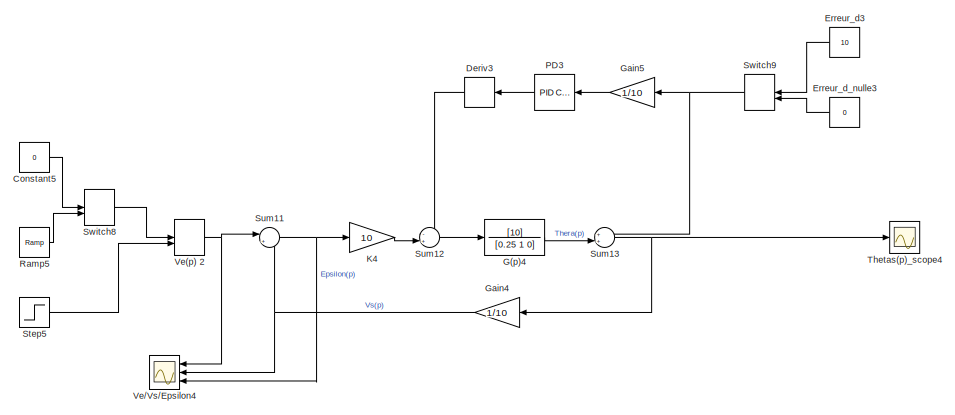
[diagram: root canvas - part 1/5, top center region]
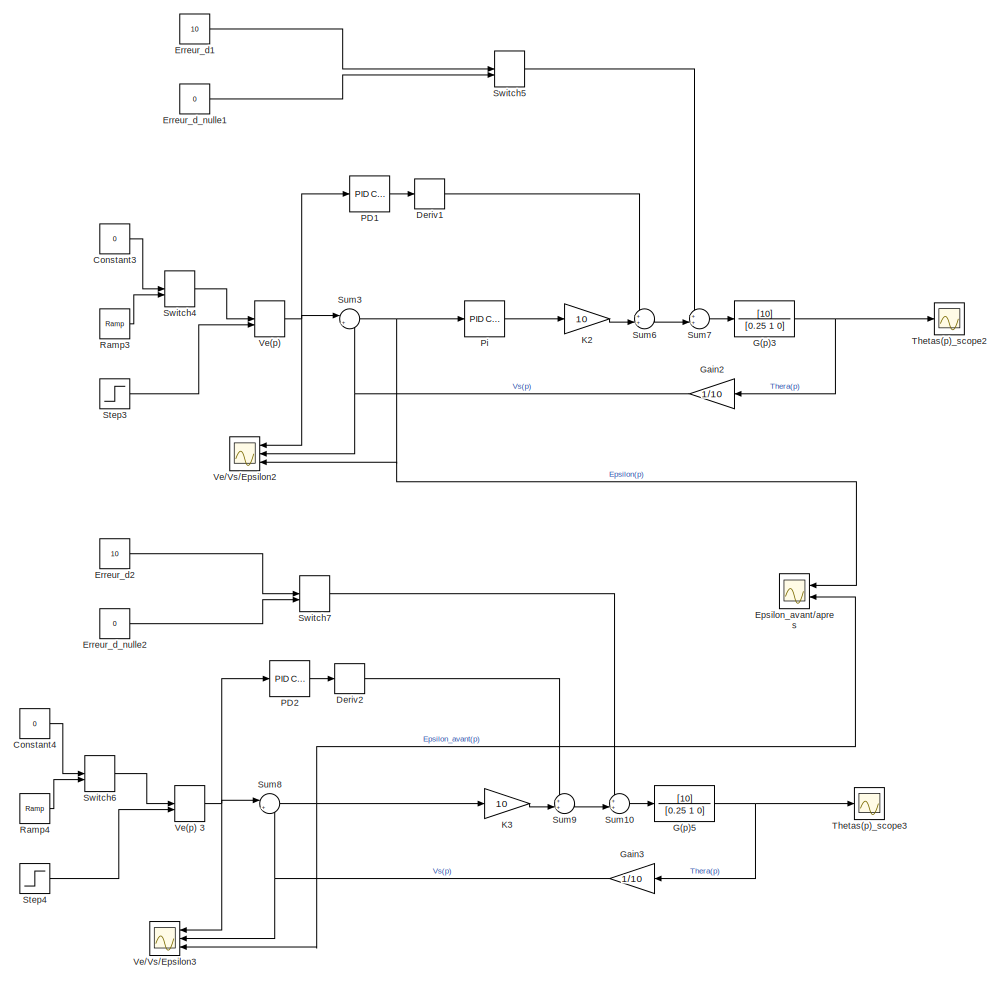
[diagram: root canvas - part 2/5, central region]
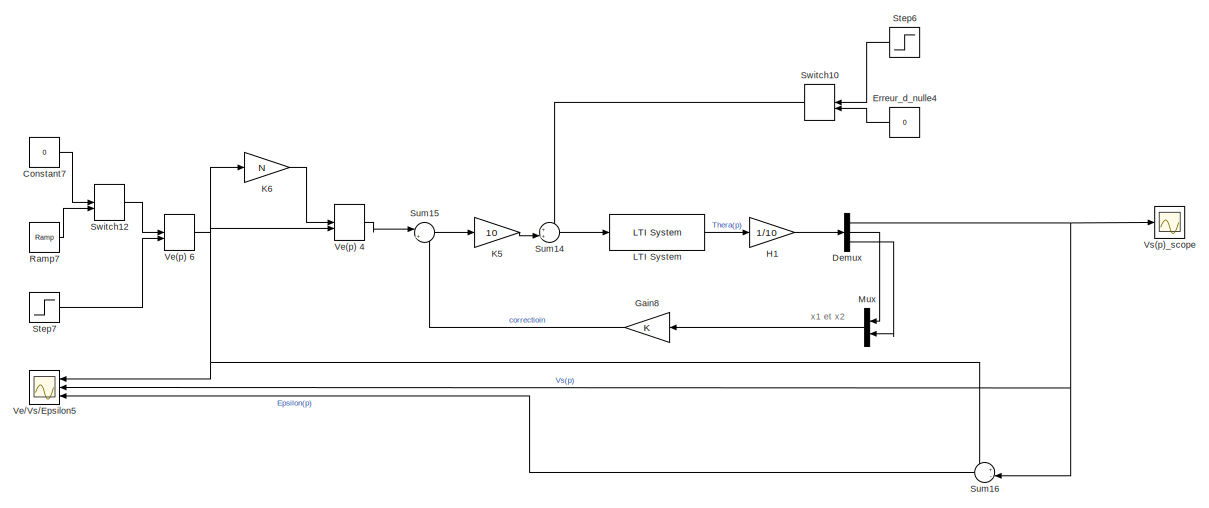
[diagram: root canvas - part 3/5, middle left region]
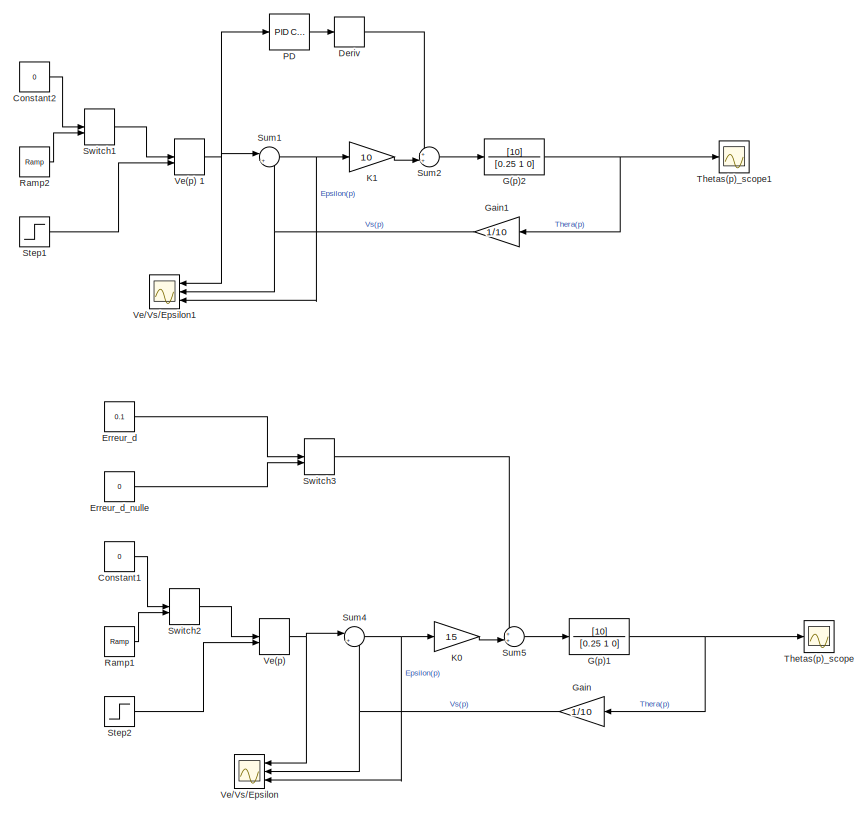
[diagram: root canvas - part 4/5, bottom right region]
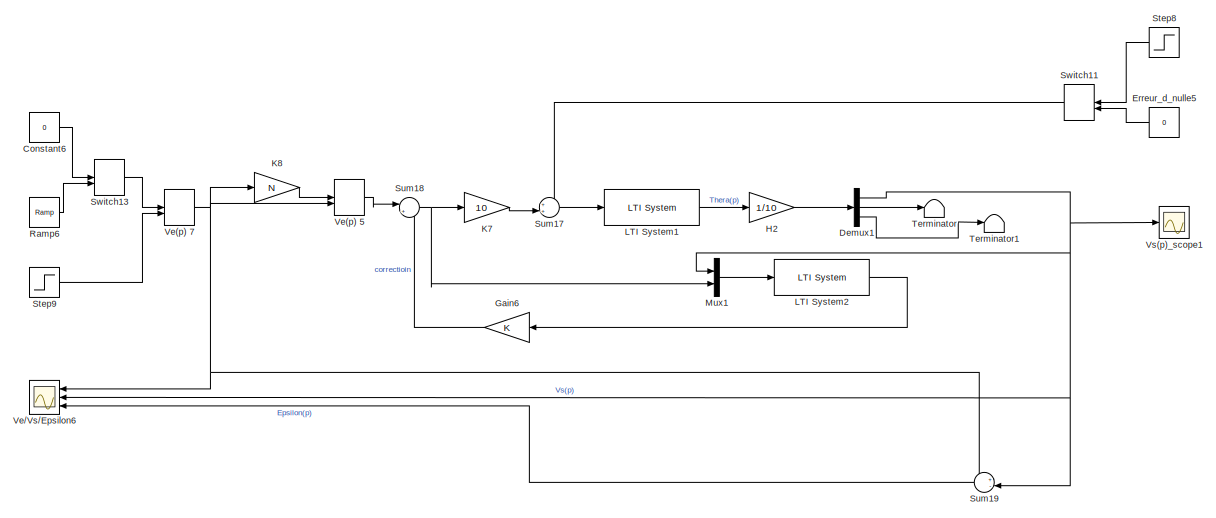
[diagram: root canvas - part 5/5, bottom left region]
MODEL slx_f2c2220bf444
KIND model
CONFIG AbsTol = auto
CONFIG FixedStep = auto
CONFIG MaxStep = auto
CONFIG MinStep = auto
CONFIG RelTol = 1e-3
CONFIG SampleTimeConstraint = Unconstrained
CONFIG Solver = VariableStepAuto
CONFIG SolverMode = Auto
CONFIG SolverName = VariableStepAuto
CONFIG StartTime = 0.0
CONFIG StopTime = 10
BLOCK [Constant] Constant1
  Value = 0
BLOCK [Constant] Constant2
  Value = 0
BLOCK [Constant] Constant3
  Value = 0
BLOCK [Constant] Constant4
  Value = 0
BLOCK [Constant] Constant5
  Value = 0
BLOCK [Constant] Constant6
  Value = 0
BLOCK [Constant] Constant7
  Value = 0
BLOCK [Demux] Demux
  DisplayOption = bar
  Outputs = 3
  Ports = [1, 3]
BLOCK [Demux] Demux1
  DisplayOption = bar
  Outputs = 3
  Ports = [1, 3]
BLOCK [Derivative] Deriv
BLOCK [Derivative] Deriv1
BLOCK [Derivative] Deriv2
BLOCK [Derivative] Deriv3
BLOCK [Scope] Epsilon_avant//apres
  NumInputPorts = 2
  Ports = [2]
  ScopeSpecificationString = Simulink.scopes.TimeScopeBlockCfg('CurrentConfiguration', extmgr.ConfigurationSet(extmgr.Configuration('Core','General UI',true),extmgr.Configuration('Core','Source UI',true),extmgr.Configuration('Sources','WiredSimulink',true,'DataLoggingVariableName','ScopeData8'),extmgr.Configuration('Visuals','Time Domain',true,'SerializedDisplays',{struct('MinYLimReal','-11.4067','MaxYLimReal','12.4067','YLab...<+2106ch>
BLOCK [Constant] Erreur_d
  Value = 0.1
BLOCK [Constant] Erreur_d1
  Value = 10
BLOCK [Constant] Erreur_d2
  Value = 10
BLOCK [Constant] Erreur_d3
  Value = 10
BLOCK [Constant] Erreur_d_nulle
  Value = 0
BLOCK [Constant] Erreur_d_nulle1
  Value = 0
BLOCK [Constant] Erreur_d_nulle2
  Value = 0
BLOCK [Constant] Erreur_d_nulle3
  Value = 0
BLOCK [Constant] Erreur_d_nulle4
  Value = 0
BLOCK [Constant] Erreur_d_nulle5
  Value = 0
BLOCK [TransferFcn] G(p)1
  Denominator = [0.25 1 0]
  Numerator = [10]
BLOCK [TransferFcn] G(p)2
  Denominator = [0.25 1 0]
  Numerator = [10]
BLOCK [TransferFcn] G(p)3
  Denominator = [0.25 1 0]
  Numerator = [10]
BLOCK [TransferFcn] G(p)4
  Denominator = [0.25 1 0]
  Numerator = [10]
BLOCK [TransferFcn] G(p)5
  Denominator = [0.25 1 0]
  Numerator = [10]
BLOCK [Gain] Gain
  Gain = 1/10
  OutDataTypeStr = Inherit: Inherit via internal rule
  ParamDataTypeStr = Inherit: Inherit via internal rule
  SaturateOnIntegerOverflow = off
BLOCK [Gain] Gain1
  Gain = 1/10
  OutDataTypeStr = Inherit: Inherit via internal rule
  ParamDataTypeStr = Inherit: Inherit via internal rule
  SaturateOnIntegerOverflow = off
BLOCK [Gain] Gain2
  Gain = 1/10
  OutDataTypeStr = Inherit: Inherit via internal rule
  ParamDataTypeStr = Inherit: Inherit via internal rule
  SaturateOnIntegerOverflow = off
BLOCK [Gain] Gain3
  Gain = 1/10
  OutDataTypeStr = Inherit: Inherit via internal rule
  ParamDataTypeStr = Inherit: Inherit via internal rule
  SaturateOnIntegerOverflow = off
BLOCK [Gain] Gain4
  Gain = 1/10
  OutDataTypeStr = Inherit: Inherit via internal rule
  ParamDataTypeStr = Inherit: Inherit via internal rule
  SaturateOnIntegerOverflow = off
BLOCK [Gain] Gain5
  Gain = 1/10
  OutDataTypeStr = Inherit: Inherit via internal rule
  ParamDataTypeStr = Inherit: Inherit via internal rule
  SaturateOnIntegerOverflow = off
BLOCK [Gain] Gain6
  Gain = K
  Multiplication = Matrix(K*u)
  OutDataTypeStr = Inherit: Inherit via internal rule
  ParamDataTypeStr = Inherit: Inherit via internal rule
  SaturateOnIntegerOverflow = off
BLOCK [Gain] Gain8
  Gain = K
  Multiplication = Matrix(K*u)
  OutDataTypeStr = Inherit: Inherit via internal rule
  ParamDataTypeStr = Inherit: Inherit via internal rule
  SaturateOnIntegerOverflow = off
BLOCK [Gain] H1
  Gain = 1/10
  OutDataTypeStr = Inherit: Inherit via internal rule
  ParamDataTypeStr = Inherit: Inherit via internal rule
  SaturateOnIntegerOverflow = off
BLOCK [Gain] H2
  Gain = 1/10
  OutDataTypeStr = Inherit: Inherit via internal rule
  ParamDataTypeStr = Inherit: Inherit via internal rule
  SaturateOnIntegerOverflow = off
BLOCK [Gain] K0
  Gain = 15
  OutDataTypeStr = Inherit: Inherit via internal rule
  ParamDataTypeStr = Inherit: Inherit via internal rule
  SaturateOnIntegerOverflow = off
BLOCK [Gain] K1
  Gain = 10
  OutDataTypeStr = Inherit: Inherit via internal rule
  ParamDataTypeStr = Inherit: Inherit via internal rule
  SaturateOnIntegerOverflow = off
BLOCK [Gain] K2
  Gain = 10
  OutDataTypeStr = Inherit: Inherit via internal rule
  ParamDataTypeStr = Inherit: Inherit via internal rule
  SaturateOnIntegerOverflow = off
BLOCK [Gain] K3
  Gain = 10
  OutDataTypeStr = Inherit: Inherit via internal rule
  ParamDataTypeStr = Inherit: Inherit via internal rule
  SaturateOnIntegerOverflow = off
BLOCK [Gain] K4
  Gain = 10
  OutDataTypeStr = Inherit: Inherit via internal rule
  ParamDataTypeStr = Inherit: Inherit via internal rule
  SaturateOnIntegerOverflow = off
BLOCK [Gain] K5
  Gain = 10
  OutDataTypeStr = Inherit: Inherit via internal rule
  ParamDataTypeStr = Inherit: Inherit via internal rule
  SaturateOnIntegerOverflow = off
BLOCK [Gain] K6
  Gain = N
  OutDataTypeStr = Inherit: Inherit via internal rule
  ParamDataTypeStr = Inherit: Inherit via internal rule
  SaturateOnIntegerOverflow = off
BLOCK [Gain] K7
  Gain = 10
  OutDataTypeStr = Inherit: Inherit via internal rule
  ParamDataTypeStr = Inherit: Inherit via internal rule
  SaturateOnIntegerOverflow = off
BLOCK [Gain] K8
  Gain = N
  OutDataTypeStr = Inherit: Inherit via internal rule
  ParamDataTypeStr = Inherit: Inherit via internal rule
  SaturateOnIntegerOverflow = off
BLOCK [Reference] LTI System  REF=cstblocks/LTI System
  Ports = [1, 1]
  SourceBlock = cstblocks/LTI System
  SourceType = LTI Block
BLOCK [Reference] LTI System1  REF=cstblocks/LTI System
  Ports = [1, 1]
  SourceBlock = cstblocks/LTI System
  SourceType = LTI Block
BLOCK [Reference] LTI System2  REF=cstblocks/LTI System
  Ports = [1, 1]
  SourceBlock = cstblocks/LTI System
  SourceType = LTI Block
BLOCK [Mux] Mux
  DisplayOption = bar
  Inputs = 2
  Ports = [2, 1]
BLOCK [Mux] Mux1
  DisplayOption = bar
  Inputs = 2
  Ports = [2, 1]
BLOCK [Reference] PD  REF=simulink/Continuous/PID Controller
  Ports = [1, 1]
  SourceBlock = simulink/Continuous/PID Controller
  SourceType = PID 1dof
BLOCK [Reference] PD1  REF=simulink/Continuous/PID Controller
  Ports = [1, 1]
  SourceBlock = simulink/Continuous/PID Controller
  SourceType = PID 1dof
BLOCK [Reference] PD2  REF=simulink/Continuous/PID Controller
  Ports = [1, 1]
  SourceBlock = simulink/Continuous/PID Controller
  SourceType = PID 1dof
BLOCK [Reference] PD3  REF=simulink/Continuous/PID Controller
  Ports = [1, 1]
  SourceBlock = simulink/Continuous/PID Controller
  SourceType = PID 1dof
BLOCK [Reference] Pi  REF=simulink/Continuous/PID Controller
  Ports = [1, 1]
  SourceBlock = simulink/Continuous/PID Controller
  SourceType = PID 1dof
BLOCK [Reference] Ramp1  REF=simulink/Sources/Ramp
  Ports = [0, 1]
  SourceBlock = simulink/Sources/Ramp
  SourceType = Ramp
BLOCK [Reference] Ramp2  REF=simulink/Sources/Ramp
  Ports = [0, 1]
  SourceBlock = simulink/Sources/Ramp
  SourceType = Ramp
BLOCK [Reference] Ramp3  REF=simulink/Sources/Ramp
  Ports = [0, 1]
  SourceBlock = simulink/Sources/Ramp
  SourceType = Ramp
BLOCK [Reference] Ramp4  REF=simulink/Sources/Ramp
  Ports = [0, 1]
  SourceBlock = simulink/Sources/Ramp
  SourceType = Ramp
BLOCK [Reference] Ramp5  REF=simulink/Sources/Ramp
  Ports = [0, 1]
  SourceBlock = simulink/Sources/Ramp
  SourceType = Ramp
BLOCK [Reference] Ramp6  REF=simulink/Sources/Ramp
  Ports = [0, 1]
  SourceBlock = simulink/Sources/Ramp
  SourceType = Ramp
BLOCK [Reference] Ramp7  REF=simulink/Sources/Ramp
  Ports = [0, 1]
  SourceBlock = simulink/Sources/Ramp
  SourceType = Ramp
BLOCK [Step] Step1
  SampleTime = 0
BLOCK [Step] Step2
  SampleTime = 0
BLOCK [Step] Step3
  SampleTime = 0
BLOCK [Step] Step4
  SampleTime = 0
BLOCK [Step] Step5
  SampleTime = 0
BLOCK [Step] Step6
  After = 10
  SampleTime = 0
BLOCK [Step] Step7
  SampleTime = 0
BLOCK [Step] Step8
  After = 10
  SampleTime = 0
BLOCK [Step] Step9
  SampleTime = 0
BLOCK [Sum] Sum1
  IconShape = round
  InputSameDT = off
  Inputs = |+-
  OutDataTypeStr = Inherit: Inherit via internal rule
  Ports = [2, 1]
  SaturateOnIntegerOverflow = off
BLOCK [Sum] Sum10
  IconShape = round
  InputSameDT = off
  Inputs = ++|
  OutDataTypeStr = Inherit: Inherit via internal rule
  Ports = [2, 1]
  SaturateOnIntegerOverflow = off
BLOCK [Sum] Sum11
  IconShape = round
  InputSameDT = off
  Inputs = |+-
  OutDataTypeStr = Inherit: Inherit via internal rule
  Ports = [2, 1]
  SaturateOnIntegerOverflow = off
BLOCK [Sum] Sum12
  IconShape = round
  InputSameDT = off
  Inputs = -+|
  OutDataTypeStr = Inherit: Inherit via internal rule
  Ports = [2, 1]
  SaturateOnIntegerOverflow = off
BLOCK [Sum] Sum13
  IconShape = round
  InputSameDT = off
  Inputs = ++|
  OutDataTypeStr = Inherit: Inherit via internal rule
  Ports = [2, 1]
  SaturateOnIntegerOverflow = off
BLOCK [Sum] Sum14
  IconShape = round
  InputSameDT = off
  Inputs = ++|
  OutDataTypeStr = Inherit: Inherit via internal rule
  Ports = [2, 1]
  SaturateOnIntegerOverflow = off
BLOCK [Sum] Sum15
  IconShape = round
  InputSameDT = off
  Inputs = |+-
  OutDataTypeStr = Inherit: Inherit via internal rule
  Ports = [2, 1]
  SaturateOnIntegerOverflow = off
BLOCK [Sum] Sum16
  IconShape = round
  InputSameDT = off
  Inputs = +-|
  OutDataTypeStr = Inherit: Inherit via internal rule
  Ports = [2, 1]
  SaturateOnIntegerOverflow = off
BLOCK [Sum] Sum17
  IconShape = round
  InputSameDT = off
  Inputs = ++|
  OutDataTypeStr = Inherit: Inherit via internal rule
  Ports = [2, 1]
  SaturateOnIntegerOverflow = off
BLOCK [Sum] Sum18
  IconShape = round
  InputSameDT = off
  Inputs = |+-
  OutDataTypeStr = Inherit: Inherit via internal rule
  Ports = [2, 1]
  SaturateOnIntegerOverflow = off
BLOCK [Sum] Sum19
  IconShape = round
  InputSameDT = off
  Inputs = +-|
  OutDataTypeStr = Inherit: Inherit via internal rule
  Ports = [2, 1]
  SaturateOnIntegerOverflow = off
BLOCK [Sum] Sum2
  IconShape = round
  InputSameDT = off
  Inputs = ++|
  OutDataTypeStr = Inherit: Inherit via internal rule
  Ports = [2, 1]
  SaturateOnIntegerOverflow = off
BLOCK [Sum] Sum3
  IconShape = round
  InputSameDT = off
  Inputs = |+-
  OutDataTypeStr = Inherit: Inherit via internal rule
  Ports = [2, 1]
  SaturateOnIntegerOverflow = off
BLOCK [Sum] Sum4
  IconShape = round
  InputSameDT = off
  Inputs = |+-
  OutDataTypeStr = Inherit: Inherit via internal rule
  Ports = [2, 1]
  SaturateOnIntegerOverflow = off
BLOCK [Sum] Sum5
  IconShape = round
  InputSameDT = off
  Inputs = ++|
  OutDataTypeStr = Inherit: Inherit via internal rule
  Ports = [2, 1]
  SaturateOnIntegerOverflow = off
BLOCK [Sum] Sum6
  IconShape = round
  InputSameDT = off
  Inputs = ++|
  OutDataTypeStr = Inherit: Inherit via internal rule
  Ports = [2, 1]
  SaturateOnIntegerOverflow = off
BLOCK [Sum] Sum7
  IconShape = round
  InputSameDT = off
  Inputs = ++|
  OutDataTypeStr = Inherit: Inherit via internal rule
  Ports = [2, 1]
  SaturateOnIntegerOverflow = off
BLOCK [Sum] Sum8
  IconShape = round
  InputSameDT = off
  Inputs = |+-
  OutDataTypeStr = Inherit: Inherit via internal rule
  Ports = [2, 1]
  SaturateOnIntegerOverflow = off
BLOCK [Sum] Sum9
  IconShape = round
  InputSameDT = off
  Inputs = ++|
  OutDataTypeStr = Inherit: Inherit via internal rule
  Ports = [2, 1]
  SaturateOnIntegerOverflow = off
BLOCK [ManualSwitch] Switch1
  CurrentSetting = 0
BLOCK [ManualSwitch] Switch10
BLOCK [ManualSwitch] Switch11
BLOCK [ManualSwitch] Switch12
  CurrentSetting = 0
BLOCK [ManualSwitch] Switch13
  CurrentSetting = 0
BLOCK [ManualSwitch] Switch2
  CurrentSetting = 0
BLOCK [ManualSwitch] Switch3
  CurrentSetting = 0
BLOCK [ManualSwitch] Switch4
  CurrentSetting = 0
BLOCK [ManualSwitch] Switch5
BLOCK [ManualSwitch] Switch6
  CurrentSetting = 0
BLOCK [ManualSwitch] Switch7
BLOCK [ManualSwitch] Switch8
  CurrentSetting = 0
BLOCK [ManualSwitch] Switch9
BLOCK [Terminator] Terminator
BLOCK [Terminator] Terminator1
BLOCK [Scope] Thetas(p)_scope
  Ports = [1]
  ScopeSpecificationString = Simulink.scopes.TimeScopeBlockCfg('CurrentConfiguration', extmgr.ConfigurationSet(extmgr.Configuration('Core','General UI',true),extmgr.Configuration('Core','Source UI',true),extmgr.Configuration('Sources','WiredSimulink',true,'DataLoggingSaveFormat','StructureWithTime','DataLoggingLimitDataPoints',true,'DataLoggingDecimation','1','DataLoggingDecimateData',true,'DataLoggingVariableName','ScopeData...<+2022ch>
BLOCK [Scope] Thetas(p)_scope1
  Ports = [1]
  ScopeSpecificationString = Simulink.scopes.TimeScopeBlockCfg('CurrentConfiguration', extmgr.ConfigurationSet(extmgr.Configuration('Core','General UI',true),extmgr.Configuration('Core','Source UI',true),extmgr.Configuration('Sources','WiredSimulink',true,'DataLoggingSaveFormat','StructureWithTime','DataLoggingLimitDataPoints',true,'DataLoggingDecimation','1','DataLoggingDecimateData',true,'DataLoggingVariableName','ScopeData...<+2046ch>
BLOCK [Scope] Thetas(p)_scope2
  Ports = [1]
  ScopeSpecificationString = Simulink.scopes.TimeScopeBlockCfg('CurrentConfiguration', extmgr.ConfigurationSet(extmgr.Configuration('Core','General UI',true),extmgr.Configuration('Core','Source UI',true),extmgr.Configuration('Sources','WiredSimulink',true,'DataLoggingSaveFormat','StructureWithTime','DataLoggingLimitDataPoints',true,'DataLoggingDecimation','1','DataLoggingDecimateData',true,'DataLoggingVariableName','ScopeData...<+2048ch>
BLOCK [Scope] Thetas(p)_scope3
  Ports = [1]
  ScopeSpecificationString = Simulink.scopes.TimeScopeBlockCfg('CurrentConfiguration', extmgr.ConfigurationSet(extmgr.Configuration('Core','General UI',true),extmgr.Configuration('Core','Source UI',true),extmgr.Configuration('Sources','WiredSimulink',true,'DataLoggingSaveFormat','StructureWithTime','DataLoggingLimitDataPoints',true,'DataLoggingDecimation','1','DataLoggingDecimateData',true,'DataLoggingVariableName','ScopeData...<+2046ch>
BLOCK [Scope] Thetas(p)_scope4
  Ports = [1]
  ScopeSpecificationString = Simulink.scopes.TimeScopeBlockCfg('CurrentConfiguration', extmgr.ConfigurationSet(extmgr.Configuration('Core','General UI',true),extmgr.Configuration('Core','Source UI',true),extmgr.Configuration('Sources','WiredSimulink',true,'DataLoggingSaveFormat','StructureWithTime','DataLoggingLimitDataPoints',true,'DataLoggingDecimation','1','DataLoggingDecimateData',true,'DataLoggingVariableName','ScopeData...<+2041ch>
BLOCK [ManualSwitch] Ve(p) 
  CurrentSetting = 0
BLOCK [ManualSwitch] Ve(p) 1
  CurrentSetting = 0
BLOCK [ManualSwitch] Ve(p) 2
  CurrentSetting = 0
BLOCK [ManualSwitch] Ve(p) 3
  CurrentSetting = 0
BLOCK [ManualSwitch] Ve(p) 4
BLOCK [ManualSwitch] Ve(p) 5
BLOCK [ManualSwitch] Ve(p) 6
BLOCK [ManualSwitch] Ve(p) 7
  CurrentSetting = 0
BLOCK [Scope] Ve//Vs//Epsilon
  NumInputPorts = 3
  Ports = [3]
  ScopeSpecificationString = Simulink.scopes.TimeScopeBlockCfg('CurrentConfiguration', extmgr.ConfigurationSet(extmgr.Configuration('Core','General UI',true),extmgr.Configuration('Core','Source UI',true),extmgr.Configuration('Sources','WiredSimulink',true,'DataLoggingVariableName','ScopeData2'),extmgr.Configuration('Visuals','Time Domain',true,'SerializedDisplays',{struct('MinYLimReal','-0.53782','MaxYLimReal','1.53782','YLab...<+1818ch>
BLOCK [Scope] Ve//Vs//Epsilon1
  NumInputPorts = 3
  Ports = [3]
  ScopeSpecificationString = Simulink.scopes.TimeScopeBlockCfg('CurrentConfiguration', extmgr.ConfigurationSet(extmgr.Configuration('Core','General UI',true),extmgr.Configuration('Core','Source UI',true),extmgr.Configuration('Sources','WiredSimulink',true,'DataLoggingVariableName','ScopeData3'),extmgr.Configuration('Visuals','Time Domain',true,'SerializedDisplays',{struct('MinYLimReal','-11.4067','MaxYLimReal','12.4067','YLab...<+1840ch>
BLOCK [Scope] Ve//Vs//Epsilon2
  NumInputPorts = 3
  Ports = [3]
  ScopeSpecificationString = Simulink.scopes.TimeScopeBlockCfg('CurrentConfiguration', extmgr.ConfigurationSet(extmgr.Configuration('Core','General UI',true),extmgr.Configuration('Core','Source UI',true),extmgr.Configuration('Sources','WiredSimulink',true,'DataLoggingVariableName','ScopeData5'),extmgr.Configuration('Visuals','Time Domain',true,'SerializedDisplays',{struct('MinYLimReal','-11.4067','MaxYLimReal','12.4067','YLab...<+2135ch>
BLOCK [Scope] Ve//Vs//Epsilon3
  NumInputPorts = 3
  Ports = [3]
  ScopeSpecificationString = Simulink.scopes.TimeScopeBlockCfg('CurrentConfiguration', extmgr.ConfigurationSet(extmgr.Configuration('Core','General UI',true),extmgr.Configuration('Core','Source UI',true),extmgr.Configuration('Sources','WiredSimulink',true,'DataLoggingVariableName','ScopeData7'),extmgr.Configuration('Visuals','Time Domain',true,'SerializedDisplays',{struct('MinYLimReal','-11.4067','MaxYLimReal','12.4067','YLab...<+2111ch>
BLOCK [Scope] Ve//Vs//Epsilon4
  NumInputPorts = 3
  Ports = [3]
  ScopeSpecificationString = Simulink.scopes.TimeScopeBlockCfg('CurrentConfiguration', extmgr.ConfigurationSet(extmgr.Configuration('Core','General UI',true),extmgr.Configuration('Core','Source UI',true),extmgr.Configuration('Sources','WiredSimulink',true,'DataLoggingVariableName','ScopeData10'),extmgr.Configuration('Visuals','Time Domain',true,'SerializedDisplays',{struct('MinYLimReal','-11.4067','MaxYLimReal','12.4067','YLa...<+1839ch>
BLOCK [Scope] Ve//Vs//Epsilon5
  NumInputPorts = 3
  Ports = [3]
  ScopeSpecificationString = Simulink.scopes.TimeScopeBlockCfg('CurrentConfiguration', extmgr.ConfigurationSet(extmgr.Configuration('Core','General UI',true),extmgr.Configuration('Core','Source UI',true),extmgr.Configuration('Sources','WiredSimulink',true,'DataLoggingVariableName','ScopeData13'),extmgr.Configuration('Visuals','Time Domain',true,'SerializedDisplays',{struct('MinYLimReal','-1.25','MaxYLimReal','11.25','YLabelRe...<+2062ch>
BLOCK [Scope] Ve//Vs//Epsilon6
  NumInputPorts = 3
  Ports = [3]
  ScopeSpecificationString = Simulink.scopes.TimeScopeBlockCfg('CurrentConfiguration', extmgr.ConfigurationSet(extmgr.Configuration('Core','General UI',true),extmgr.Configuration('Core','Source UI',true),extmgr.Configuration('Sources','WiredSimulink',true,'DataLoggingVariableName','ScopeData1'),extmgr.Configuration('Visuals','Time Domain',true,'SerializedDisplays',{struct('MinYLimReal','-1.18301','MaxYLimReal','2.18301','YLab...<+2081ch>
BLOCK [Scope] Vs(p)_scope
  Ports = [1]
  ScopeSpecificationString = Simulink.scopes.TimeScopeBlockCfg('CurrentConfiguration', extmgr.ConfigurationSet(extmgr.Configuration('Core','General UI',true),extmgr.Configuration('Core','Source UI',true),extmgr.Configuration('Sources','WiredSimulink',true,'DataLoggingSaveFormat','StructureWithTime','DataLoggingLimitDataPoints',true,'DataLoggingDecimation','1','DataLoggingDecimateData',true,'DataLoggingVariableName','ScopeData...<+2034ch>
BLOCK [Scope] Vs(p)_scope1
  Ports = [1]
  ScopeSpecificationString = Simulink.scopes.TimeScopeBlockCfg('CurrentConfiguration', extmgr.ConfigurationSet(extmgr.Configuration('Core','General UI',true),extmgr.Configuration('Core','Source UI',true),extmgr.Configuration('Sources','WiredSimulink',true,'DataLoggingSaveFormat','StructureWithTime','DataLoggingLimitDataPoints',true,'DataLoggingDecimation','1','DataLoggingDecimateData',true,'DataLoggingVariableName','ScopeData...<+2033ch>
ANNOTATION (root): x1 et x2
LINE Constant1:1 -> Switch2:1
LINE Constant2:1 -> Switch1:1
LINE Constant3:1 -> Switch4:1
LINE Constant4:1 -> Switch6:1
LINE Constant5:1 -> Switch8:1
LINE Constant6:1 -> Switch13:1
LINE Constant7:1 -> Switch12:1
NET Demux1:1 -> Mux1:1, Sum19:2, Ve//Vs//Epsilon6:2, Vs(p)_scope1:1
LINE Demux1:2 -> Terminator:1
LINE Demux1:3 -> Terminator1:1
NET Demux:1 -> Sum16:2, Ve//Vs//Epsilon5:2, Vs(p)_scope:1
LINE Demux:2 -> Mux:1
LINE Demux:3 -> Mux:2
LINE Deriv1:1 -> Sum6:1
LINE Deriv2:1 -> Sum9:1
LINE Deriv3:1 -> Sum12:1
LINE Deriv:1 -> Sum2:1
LINE Erreur_d1:1 -> Switch5:1
LINE Erreur_d2:1 -> Switch7:1
LINE Erreur_d3:1 -> Switch9:1
LINE Erreur_d:1 -> Switch3:1
LINE Erreur_d_nulle1:1 -> Switch5:2
LINE Erreur_d_nulle2:1 -> Switch7:2
LINE Erreur_d_nulle3:1 -> Switch9:2
LINE Erreur_d_nulle4:1 -> Switch10:2
LINE Erreur_d_nulle5:1 -> Switch11:2
LINE Erreur_d_nulle:1 -> Switch3:2
NET G(p)1:1 -> Gain:1, Thetas(p)_scope:1
NET G(p)2:1 -> Gain1:1, Thetas(p)_scope1:1
NET G(p)3:1 -> Gain2:1, Thetas(p)_scope2:1
LINE G(p)4:1 -> Sum13:2
NET G(p)5:1 -> Gain3:1, Thetas(p)_scope3:1
NET Gain1:1 -> Sum1:2, Ve//Vs//Epsilon1:2
NET Gain2:1 -> Sum3:2, Ve//Vs//Epsilon2:2
NET Gain3:1 -> Sum8:2, Ve//Vs//Epsilon3:2
NET Gain4:1 -> Sum11:2, Ve//Vs//Epsilon4:2
LINE Gain5:1 -> PD3:1
LINE Gain6:1 -> Sum18:2
LINE Gain8:1 -> Sum15:2
NET Gain:1 -> Sum4:2, Ve//Vs//Epsilon:2
LINE H1:1 -> Demux:1
LINE H2:1 -> Demux1:1
LINE K0:1 -> Sum5:2
LINE K1:1 -> Sum2:2
LINE K2:1 -> Sum6:2
LINE K3:1 -> Sum9:2
LINE K4:1 -> Sum12:2
LINE K5:1 -> Sum14:2
LINE K6:1 -> Ve(p) 4:1
LINE K7:1 -> Sum17:2
LINE K8:1 -> Ve(p) 5:1
LINE LTI System1:1 -> H2:1
LINE LTI System2:1 -> Gain6:1
LINE LTI System:1 -> H1:1
LINE Mux1:1 -> LTI System2:1
LINE Mux:1 -> Gain8:1
LINE PD1:1 -> Deriv1:1
LINE PD2:1 -> Deriv2:1
LINE PD3:1 -> Deriv3:1
LINE PD:1 -> Deriv:1
LINE Pi:1 -> K2:1
LINE Ramp1:1 -> Switch2:2
LINE Ramp2:1 -> Switch1:2
LINE Ramp3:1 -> Switch4:2
LINE Ramp4:1 -> Switch6:2
LINE Ramp5:1 -> Switch8:2
LINE Ramp6:1 -> Switch13:2
LINE Ramp7:1 -> Switch12:2
LINE Step1:1 -> Ve(p) 1:2
LINE Step2:1 -> Ve(p) :2
LINE Step3:1 -> Ve(p) :2
LINE Step4:1 -> Ve(p) 3:2
LINE Step5:1 -> Ve(p) 2:2
LINE Step6:1 -> Switch10:1
LINE Step7:1 -> Ve(p) 6:2
LINE Step8:1 -> Switch11:1
LINE Step9:1 -> Ve(p) 7:2
LINE Sum10:1 -> G(p)5:1
NET Sum11:1 -> K4:1, Ve//Vs//Epsilon4:3
LINE Sum12:1 -> G(p)4:1
NET Sum13:1 -> Gain4:1, Thetas(p)_scope4:1
LINE Sum14:1 -> LTI System:1
LINE Sum15:1 -> K5:1
LINE Sum16:1 -> Ve//Vs//Epsilon5:3
LINE Sum17:1 -> LTI System1:1
NET Sum18:1 -> K7:1, Mux1:2
LINE Sum19:1 -> Ve//Vs//Epsilon6:3
NET Sum1:1 -> K1:1, Ve//Vs//Epsilon1:3
LINE Sum2:1 -> G(p)2:1
NET Sum3:1 -> Epsilon_avant//apres:1, Pi:1, Ve//Vs//Epsilon2:3
NET Sum4:1 -> K0:1, Ve//Vs//Epsilon:3
LINE Sum5:1 -> G(p)1:1
LINE Sum6:1 -> Sum7:2
LINE Sum7:1 -> G(p)3:1
NET Sum8:1 -> Epsilon_avant//apres:2, K3:1, Ve//Vs//Epsilon3:3
LINE Sum9:1 -> Sum10:2
LINE Switch10:1 -> Sum14:1
LINE Switch11:1 -> Sum17:1
LINE Switch12:1 -> Ve(p) 6:1
LINE Switch13:1 -> Ve(p) 7:1
LINE Switch1:1 -> Ve(p) 1:1
LINE Switch2:1 -> Ve(p) :1
LINE Switch3:1 -> Sum5:1
LINE Switch4:1 -> Ve(p) :1
LINE Switch5:1 -> Sum7:1
LINE Switch6:1 -> Ve(p) 3:1
LINE Switch7:1 -> Sum10:1
LINE Switch8:1 -> Ve(p) 2:1
NET Switch9:1 -> Gain5:1, Sum13:1
NET Ve(p) 1:1 -> PD:1, Sum1:1, Ve//Vs//Epsilon1:1
NET Ve(p) 2:1 -> Sum11:1, Ve//Vs//Epsilon4:1
NET Ve(p) 3:1 -> PD2:1, Sum8:1, Ve//Vs//Epsilon3:1
LINE Ve(p) 4:1 -> Sum15:1
LINE Ve(p) 5:1 -> Sum18:1
NET Ve(p) 6:1 -> K6:1, Sum16:1, Ve(p) 4:2, Ve//Vs//Epsilon5:1
NET Ve(p) 7:1 -> K8:1, Sum19:1, Ve(p) 5:2, Ve//Vs//Epsilon6:1
NET Ve(p) :1 -> PD1:1, Sum3:1, Sum4:1, Ve//Vs//Epsilon2:1, Ve//Vs//Epsilon:1
note: NET lines group one-source signal fan-out (src -> all destinations, sorted); 1:1 wires keep LINE
